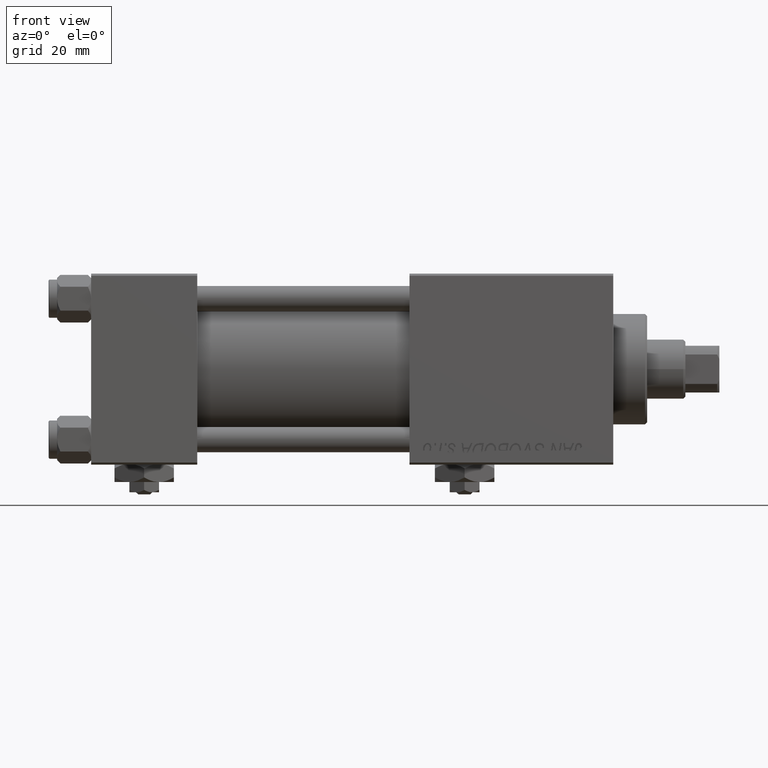
[diagram: clean part render]
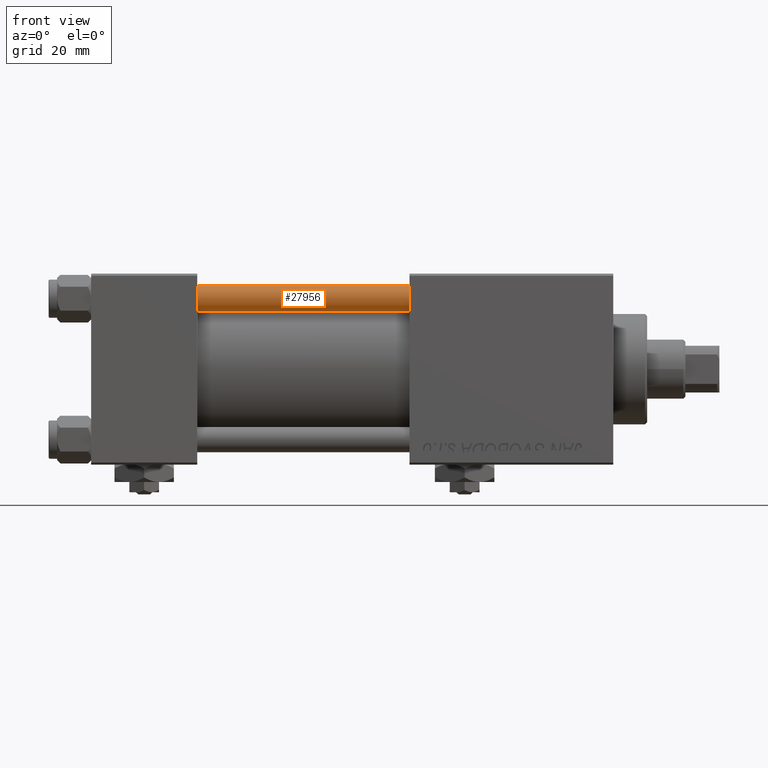
[diagram: same view with one face highlighted and labeled with its STEP entity id]
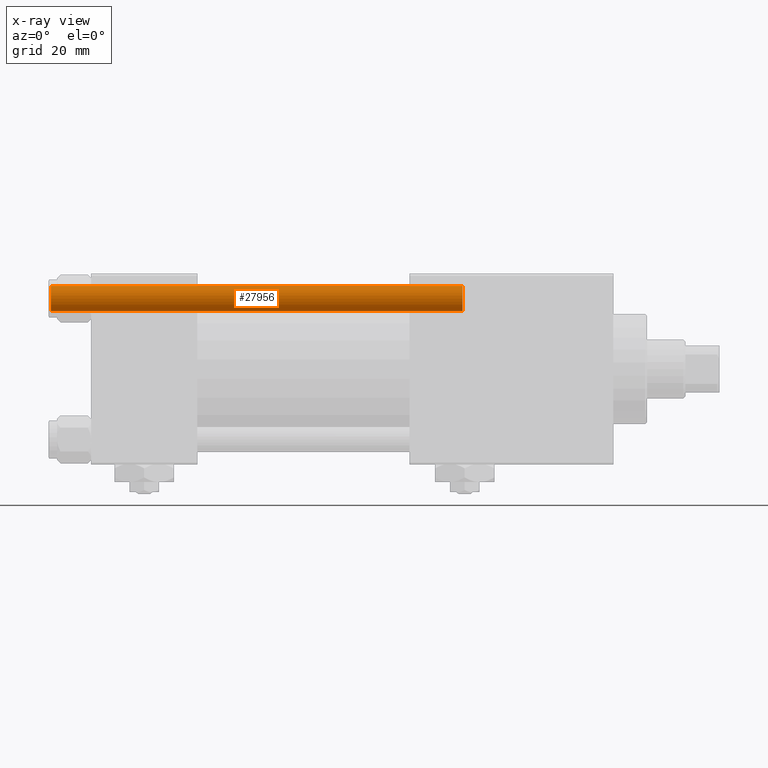
[diagram: x-ray of the same camera — body ghosted, the highlighted face saturated]
A machine part, front view. The second image highlights one B-rep face of the part: STEP entity #27956.
The next image is the same camera in x-ray: the body ghosted, the highlighted face saturated — about 0% of this face is hidden behind the body in this view.
In plain terms, the highlighted cylindrical surface (edge-blend (fillet) strip) has radius 3 mm, axis along (1, 0, -0).
Its self-contained STEP definition (entity closure, byte-faithful):
#4806 = EDGE_CURVE ( 'NONE', #34854, #36633, #21565, .T. ) ;
#8791 = ORIENTED_EDGE ( 'NONE', *, *, #14551, .T. ) ;
#8802 = AXIS2_PLACEMENT_3D ( 'NONE', #41999, #32786, #48892 ) ;
#9449 = AXIS2_PLACEMENT_3D ( 'NONE', #32219, #11911, #47803 ) ;
#9953 = CARTESIAN_POINT ( 'NONE',  ( 0.000000000000000000, 0.000000000000000000, 0.5000000000000281997 ) ) ;
#10454 = CARTESIAN_POINT ( 'NONE',  ( -3.000000000000000444, 0.000000000000000000, 0.5000000000000281997 ) ) ;
#11911 = DIRECTION ( 'NONE',  ( -0.000000000000000000, -0.000000000000000000, -1.000000000000000000 ) ) ;
#12451 = VECTOR ( 'NONE', #50011, 1000.000000000000000 ) ;
#12865 = CARTESIAN_POINT ( 'NONE',  ( -3.000000000000000444, 0.000000000000000000, 98.00000000000000000 ) ) ;
#14551 = EDGE_CURVE ( 'NONE', #45242, #26620, #49493, .T. ) ;
#18678 = DIRECTION ( 'NONE',  ( -0.000000000000000000, -0.000000000000000000, 1.000000000000000000 ) ) ;
#20743 = CARTESIAN_POINT ( 'NONE',  ( 3.000000000000000444, 3.673940397442060361E-16, 98.00000000000000000 ) ) ;
#21565 = LINE ( 'NONE', #12865, #47113 ) ;
#24037 = CARTESIAN_POINT ( 'NONE',  ( 3.000000000000000444, 3.673940397442060361E-16, 0.5000000000000281997 ) ) ;
#24294 = CYLINDRICAL_SURFACE ( 'NONE', #9449, 3.000000000000000444 ) ;
#25343 = ORIENTED_EDGE ( 'NONE', *, *, #4806, .F. ) ;
#26620 = VERTEX_POINT ( 'NONE', #24037 ) ;
#27956 = ADVANCED_FACE ( 'NONE', ( #35651 ), #24294, .T. ) ;
#28151 = ORIENTED_EDGE ( 'NONE', *, *, #33175, .T. ) ;
#32219 = CARTESIAN_POINT ( 'NONE',  ( 0.000000000000000000, 0.000000000000000000, 98.00000000000000000 ) ) ;
#32786 = DIRECTION ( 'NONE',  ( 0.000000000000000000, 0.000000000000000000, -1.000000000000000000 ) ) ;
#33175 = EDGE_CURVE ( 'NONE', #34854, #45242, #36626, .T. ) ;
#34482 = DIRECTION ( 'NONE',  ( 1.000000000000000000, 0.000000000000000000, 0.000000000000000000 ) ) ;
#34693 = CARTESIAN_POINT ( 'NONE',  ( -3.000000000000000444, 0.000000000000000000, 97.50000000000001421 ) ) ;
#34728 = CIRCLE ( 'NONE', #43167, 3.000000000000000444 ) ;
#34854 = VERTEX_POINT ( 'NONE', #34693 ) ;
#35651 = FACE_OUTER_BOUND ( 'NONE', #47404, .T. ) ;
#36341 = ORIENTED_EDGE ( 'NONE', *, *, #48089, .T. ) ;
#36626 = CIRCLE ( 'NONE', #8802, 3.000000000000000444 ) ;
#36633 = VERTEX_POINT ( 'NONE', #10454 ) ;
#41999 = CARTESIAN_POINT ( 'NONE',  ( 0.000000000000000000, 0.000000000000000000, 97.50000000000001421 ) ) ;
#43167 = AXIS2_PLACEMENT_3D ( 'NONE', #9953, #18678, #34482 ) ;
#44493 = CARTESIAN_POINT ( 'NONE',  ( 3.000000000000000444, 3.673940397442060361E-16, 97.50000000000001421 ) ) ;
#45242 = VERTEX_POINT ( 'NONE', #44493 ) ;
#46083 = DIRECTION ( 'NONE',  ( -0.000000000000000000, -0.000000000000000000, -1.000000000000000000 ) ) ;
#47113 = VECTOR ( 'NONE', #46083, 1000.000000000000000 ) ;
#47404 = EDGE_LOOP ( 'NONE', ( #28151, #8791, #36341, #25343 ) ) ;
#47803 = DIRECTION ( 'NONE',  ( -1.000000000000000000, 0.000000000000000000, 0.000000000000000000 ) ) ;
#48089 = EDGE_CURVE ( 'NONE', #26620, #36633, #34728, .T. ) ;
#48892 = DIRECTION ( 'NONE',  ( 1.000000000000000000, 0.000000000000000000, 0.000000000000000000 ) ) ;
#49493 = LINE ( 'NONE', #20743, #12451 ) ;
#50011 = DIRECTION ( 'NONE',  ( -0.000000000000000000, -0.000000000000000000, -1.000000000000000000 ) ) ;